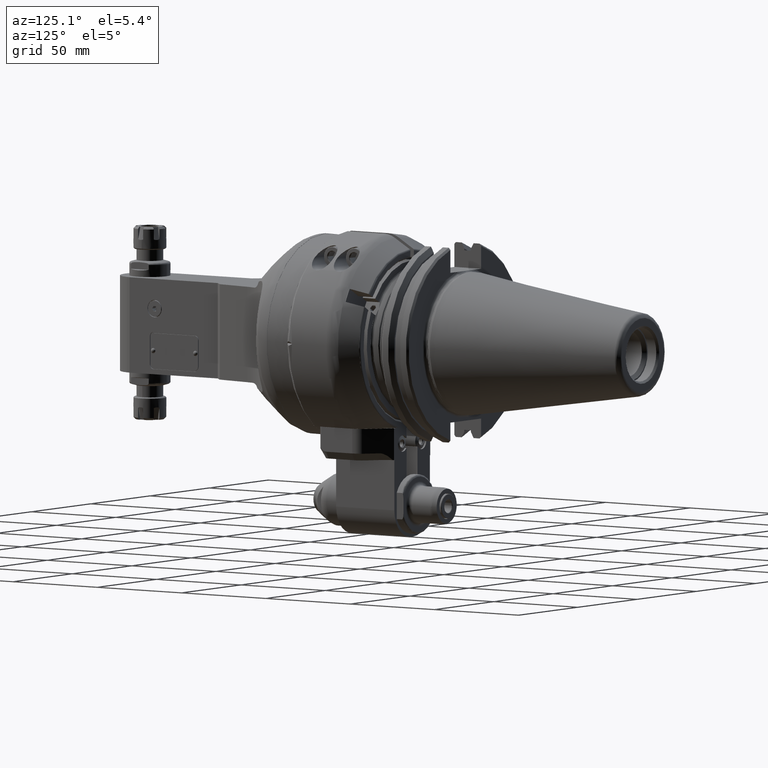
[diagram: clean part render]
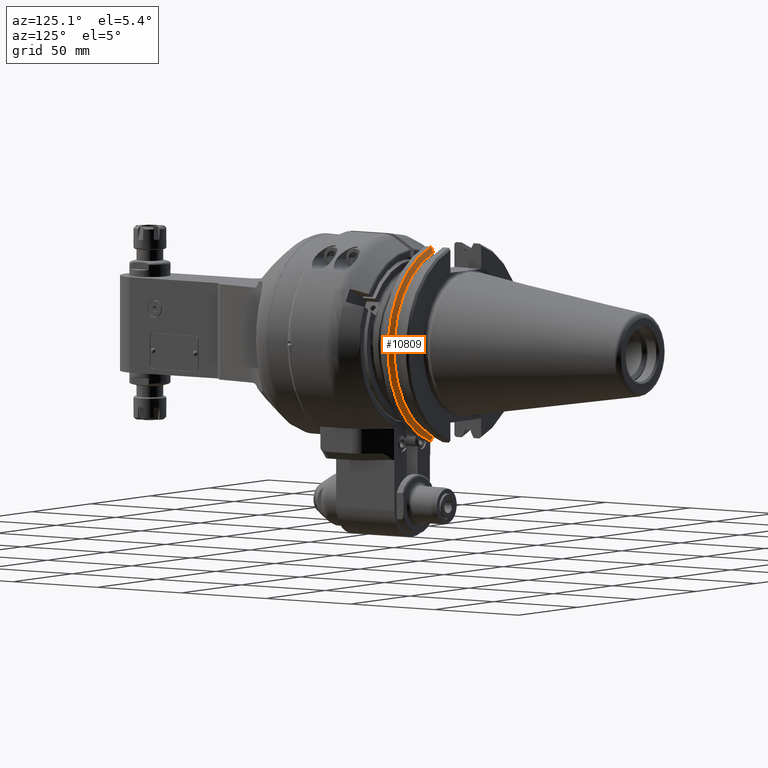
[diagram: same view with one face highlighted and labeled with its STEP entity id]
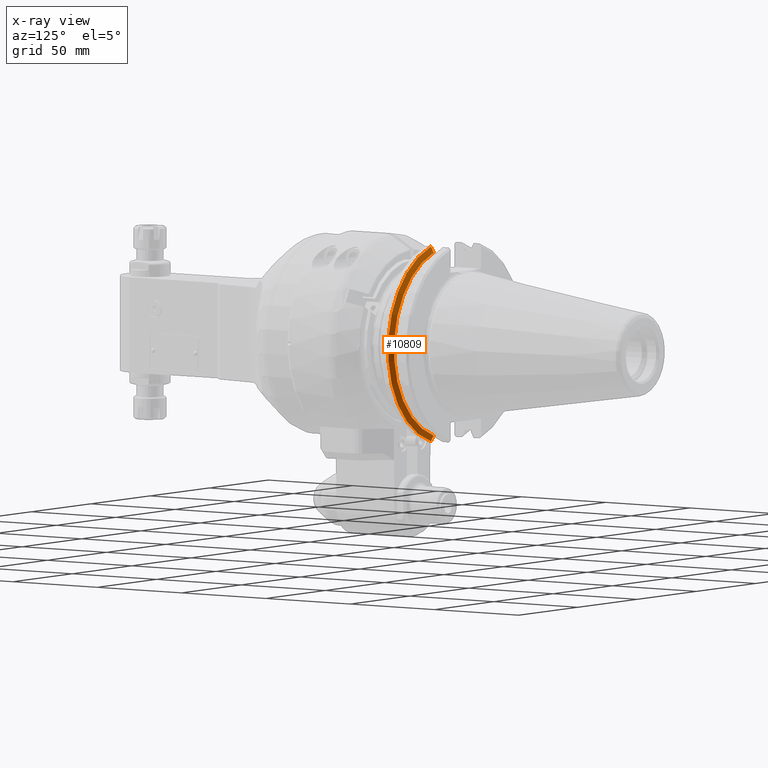
[diagram: x-ray of the same camera — body ghosted, the highlighted face saturated]
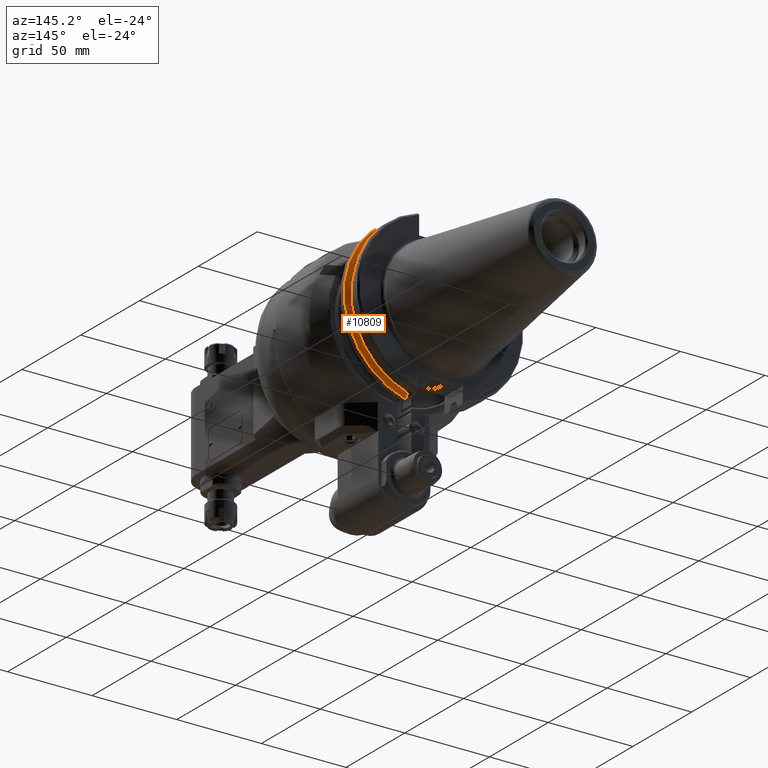
[diagram: same view with one face highlighted and labeled with its STEP entity id]
A machine part, auxiliary view. The second image highlights one B-rep face of the part: STEP entity #10809.
The next image is the same camera in x-ray: the body ghosted, the highlighted face saturated — about 0% of this face is hidden behind the body in this view.
A second angle (auxiliary view) of the same face is appended — the face is thin or edge-on in the first view.
In plain terms, the highlighted conical surface has half-angle 60 deg.
Its self-contained STEP definition (entity closure, byte-faithful):
#55=(
BOUNDED_CURVE()
B_SPLINE_CURVE(2,(#21207,#21208,#21209),.UNSPECIFIED.,.F.,.F.)
B_SPLINE_CURVE_WITH_KNOTS((3,3),(2.63095146989336,2.9137236918522),
 .UNSPECIFIED.)
CURVE()
GEOMETRIC_REPRESENTATION_ITEM()
RATIONAL_B_SPLINE_CURVE((1.03388806432512,1.03135373952369,1.02788317449083))
REPRESENTATION_ITEM('')
);
#61=(
BOUNDED_CURVE()
B_SPLINE_CURVE(2,(#21392,#21393,#21394),.UNSPECIFIED.,.F.,.F.)
B_SPLINE_CURVE_WITH_KNOTS((3,3),(0.817297255891224,1.10006947783372),
 .UNSPECIFIED.)
CURVE()
GEOMETRIC_REPRESENTATION_ITEM()
RATIONAL_B_SPLINE_CURVE((1.02788317449122,1.03135373952382,1.03388806432511))
REPRESENTATION_ITEM('')
);
#173=CONICAL_SURFACE('',#12116,1.88265172093543,1.0471975511966);
#1281=CIRCLE('',#12115,1.9375);
#1282=CIRCLE('',#12117,1.82780344187047);
#1881=FACE_OUTER_BOUND('',#2621,.T.);
#2621=EDGE_LOOP('',(#9694,#9695,#9696,#9697));
#5114=VERTEX_POINT('',#21204);
#5115=VERTEX_POINT('',#21206);
#5165=VERTEX_POINT('',#21389);
#5166=VERTEX_POINT('',#21391);
#6613=EDGE_CURVE('',#5115,#5114,#55,.T.);
#6692=EDGE_CURVE('',#5166,#5165,#61,.T.);
#6696=EDGE_CURVE('',#5114,#5166,#1281,.T.);
#6697=EDGE_CURVE('',#5115,#5165,#1282,.T.);
#9694=ORIENTED_EDGE('',*,*,#6696,.T.);
#9695=ORIENTED_EDGE('',*,*,#6692,.T.);
#9696=ORIENTED_EDGE('',*,*,#6697,.F.);
#9697=ORIENTED_EDGE('',*,*,#6613,.T.);
#10809=ADVANCED_FACE('',(#1881),#173,.T.);
#12115=AXIS2_PLACEMENT_3D('',#21401,#15274,#15275);
#12116=AXIS2_PLACEMENT_3D('',#21402,#15276,#15277);
#12117=AXIS2_PLACEMENT_3D('',#21403,#15278,#15279);
#15274=DIRECTION('center_axis',(0.,1.,0.));
#15275=DIRECTION('ref_axis',(1.,0.,0.));
#15276=DIRECTION('center_axis',(0.,-1.,0.));
#15277=DIRECTION('ref_axis',(1.,0.,0.));
#15278=DIRECTION('center_axis',(0.,1.,0.));
#15279=DIRECTION('ref_axis',(0.279023437814492,0.,0.960284291837674));
#21204=CARTESIAN_POINT('',(0.51,2.35424540279213,1.86917261107677));
#21206=CARTESIAN_POINT('',(0.51,2.41757874015748,1.75521093379528));
#21207=CARTESIAN_POINT('Ctrl Pts',(0.51,2.41757874015744,1.75521093379519));
#21208=CARTESIAN_POINT('Ctrl Pts',(0.51,2.38690776815725,1.81053171980971));
#21209=CARTESIAN_POINT('Ctrl Pts',(0.51,2.35424540278895,1.86917261108288));
#21389=CARTESIAN_POINT('',(0.51,2.41757874015748,-1.75521093379528));
#21391=CARTESIAN_POINT('',(0.51,2.35424540279213,-1.86917261107677));
#21392=CARTESIAN_POINT('Ctrl Pts',(0.51,2.35424540279274,-1.86917261107607));
#21393=CARTESIAN_POINT('Ctrl Pts',(0.51,2.38690776815903,-1.81053171980651));
#21394=CARTESIAN_POINT('Ctrl Pts',(0.51,2.41757874015744,-1.75521093379519));
#21401=CARTESIAN_POINT('Origin',(0.,2.35424540279213,0.));
#21402=CARTESIAN_POINT('Origin',(0.,2.3859120714748,0.));
#21403=CARTESIAN_POINT('Origin',(0.,2.41757874015748,0.));